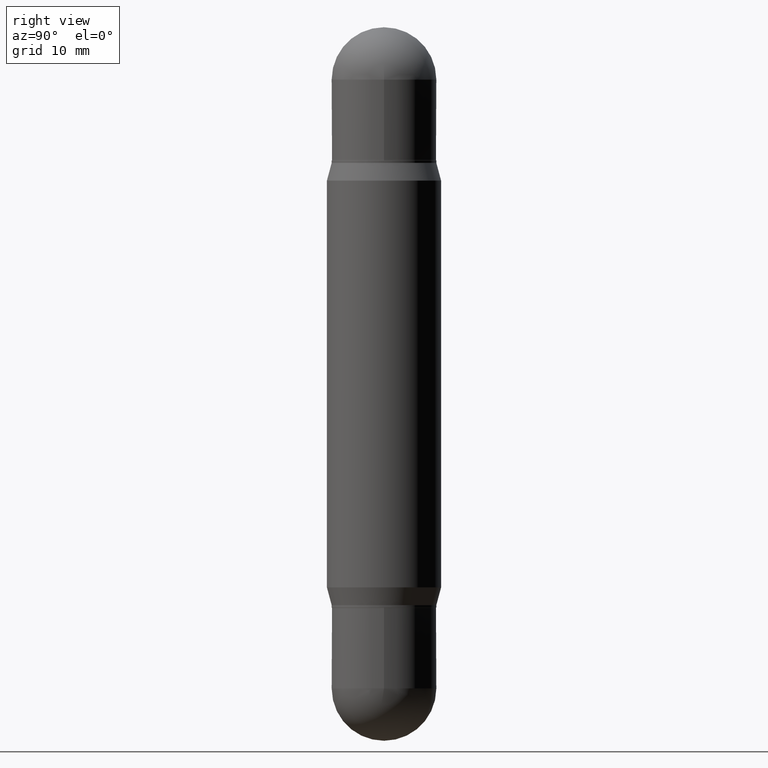
[diagram: clean part render]
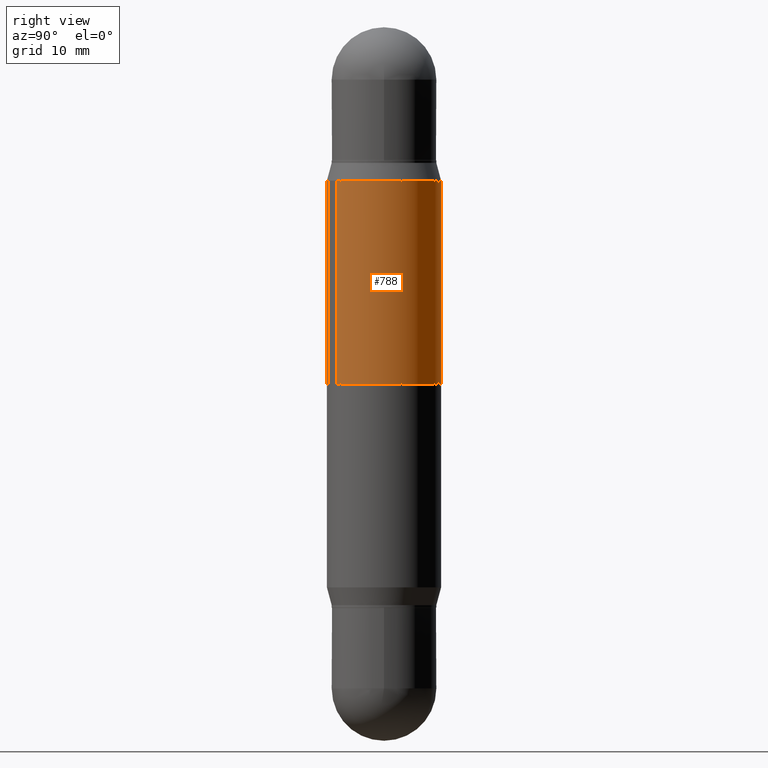
[diagram: same view with one face highlighted and labeled with its STEP entity id]
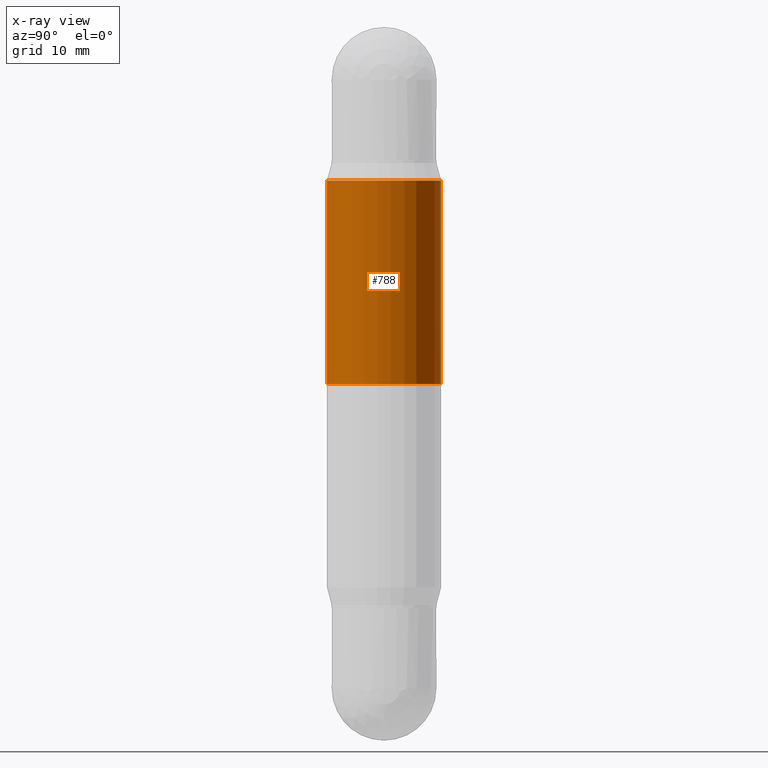
[diagram: x-ray of the same camera — body ghosted, the highlighted face saturated]
A machine part, right view. The second image highlights one B-rep face of the part: STEP entity #788.
The next image is the same camera in x-ray: the body ghosted, the highlighted face saturated — about 0% of this face is hidden behind the body in this view.
In plain terms, the highlighted cylindrical surface (partial cylindrical patch) has radius 5.9995 mm, axis along (-0, -0, -1).
Its self-contained STEP definition (entity closure, byte-faithful):
#41 = AXIS2_PLACEMENT_3D ( 'NONE', #75, #81, #866 ) ;
#75 = CARTESIAN_POINT ( 'NONE',  ( 3.607574052715599873E-29, -5.158999059439856481E-15, -1.476399999999999935 ) ) ;
#81 = DIRECTION ( 'NONE',  ( -0.000000000000000000, -3.485547902910486918E-15, -1.000000000000000000 ) ) ;
#86 = CARTESIAN_POINT ( 'NONE',  ( 0.000000000000000000, -1.029212584771408642E-14, -2.952799999999999869 ) ) ;
#232 = LINE ( 'NONE', #906, #647 ) ;
#270 = DIRECTION ( 'NONE',  ( -6.982962677686265922E-15, -1.000000000000000000, 3.469747663417777397E-15 ) ) ;
#311 = CARTESIAN_POINT ( 'NONE',  ( -1.649375784469459843E-15, -0.2362000000000051558, -1.476399999999999046 ) ) ;
#337 = CARTESIAN_POINT ( 'NONE',  ( -1.649375784469439136E-15, -0.2362000000000022137, -0.6345347983687275040 ) ) ;
#363 = VECTOR ( 'NONE', #629, 39.37007874015748143 ) ;
#399 = DIRECTION ( 'NONE',  ( -2.443493668867244593E-29, -3.476785957920772271E-15, -1.000000000000000000 ) ) ;
#410 = CARTESIAN_POINT ( 'NONE',  ( 1.620449627073692271E-15, 0.2361999999999977728, -0.6345347983687291693 ) ) ;
#423 = VERTEX_POINT ( 'NONE', #1101 ) ;
#425 = CARTESIAN_POINT ( 'NONE',  ( 5.664666342941258736E-29, -2.232013947946112511E-15, -0.6345347983687283921 ) ) ;
#432 = VERTEX_POINT ( 'NONE', #337 ) ;
#444 = EDGE_CURVE ( 'NONE', #423, #727, #515, .T. ) ;
#515 = CIRCLE ( 'NONE', #41, 0.2361999999999999933 ) ;
#516 = CIRCLE ( 'NONE', #782, 0.2361999999999999933 ) ;
#555 = ORIENTED_EDGE ( 'NONE', *, *, #444, .F. ) ;
#629 = DIRECTION ( 'NONE',  ( -2.443493668867244593E-29, -3.476785957920772271E-15, -1.000000000000000000 ) ) ;
#647 = VECTOR ( 'NONE', #399, 39.37007874015748143 ) ;
#671 = EDGE_LOOP ( 'NONE', ( #846, #1061, #1013, #555 ) ) ;
#674 = EDGE_CURVE ( 'NONE', #1115, #423, #232, .T. ) ;
#707 = FACE_OUTER_BOUND ( 'NONE', #671, .T. ) ;
#727 = VERTEX_POINT ( 'NONE', #311 ) ;
#762 = DIRECTION ( 'NONE',  ( 2.443493668867244874E-29, 3.476785957920772665E-15, 1.000000000000000000 ) ) ;
#782 = AXIS2_PLACEMENT_3D ( 'NONE', #425, #762, #270 ) ;
#788 = ADVANCED_FACE ( 'NONE', ( #707 ), #865, .T. ) ;
#846 = ORIENTED_EDGE ( 'NONE', *, *, #674, .F. ) ;
#865 = CYLINDRICAL_SURFACE ( 'NONE', #929, 0.2361999999999999933 ) ;
#866 = DIRECTION ( 'NONE',  ( 0.000000000000000000, 1.000000000000000000, -3.469747663417777397E-15 ) ) ;
#889 = EDGE_CURVE ( 'NONE', #432, #1115, #516, .T. ) ;
#905 = CARTESIAN_POINT ( 'NONE',  ( -1.649375784469495934E-15, -0.2362000000000102629, -2.952799999999998537 ) ) ;
#906 = CARTESIAN_POINT ( 'NONE',  ( 1.620449627073635473E-15, 0.2361999999999897237, -2.952800000000000757 ) ) ;
#929 = AXIS2_PLACEMENT_3D ( 'NONE', #86, #946, #960 ) ;
#946 = DIRECTION ( 'NONE',  ( -2.443493668867244874E-29, -3.476785957920772665E-15, -1.000000000000000000 ) ) ;
#960 = DIRECTION ( 'NONE',  ( -6.982962677686265922E-15, -1.000000000000000000, 4.626330217890369336E-15 ) ) ;
#999 = EDGE_CURVE ( 'NONE', #432, #727, #1072, .T. ) ;
#1013 = ORIENTED_EDGE ( 'NONE', *, *, #999, .T. ) ;
#1061 = ORIENTED_EDGE ( 'NONE', *, *, #889, .F. ) ;
#1072 = LINE ( 'NONE', #905, #363 ) ;
#1101 = CARTESIAN_POINT ( 'NONE',  ( 1.620449627073681819E-15, 0.2361999999999948308, -1.476400000000000601 ) ) ;
#1115 = VERTEX_POINT ( 'NONE', #410 ) ;